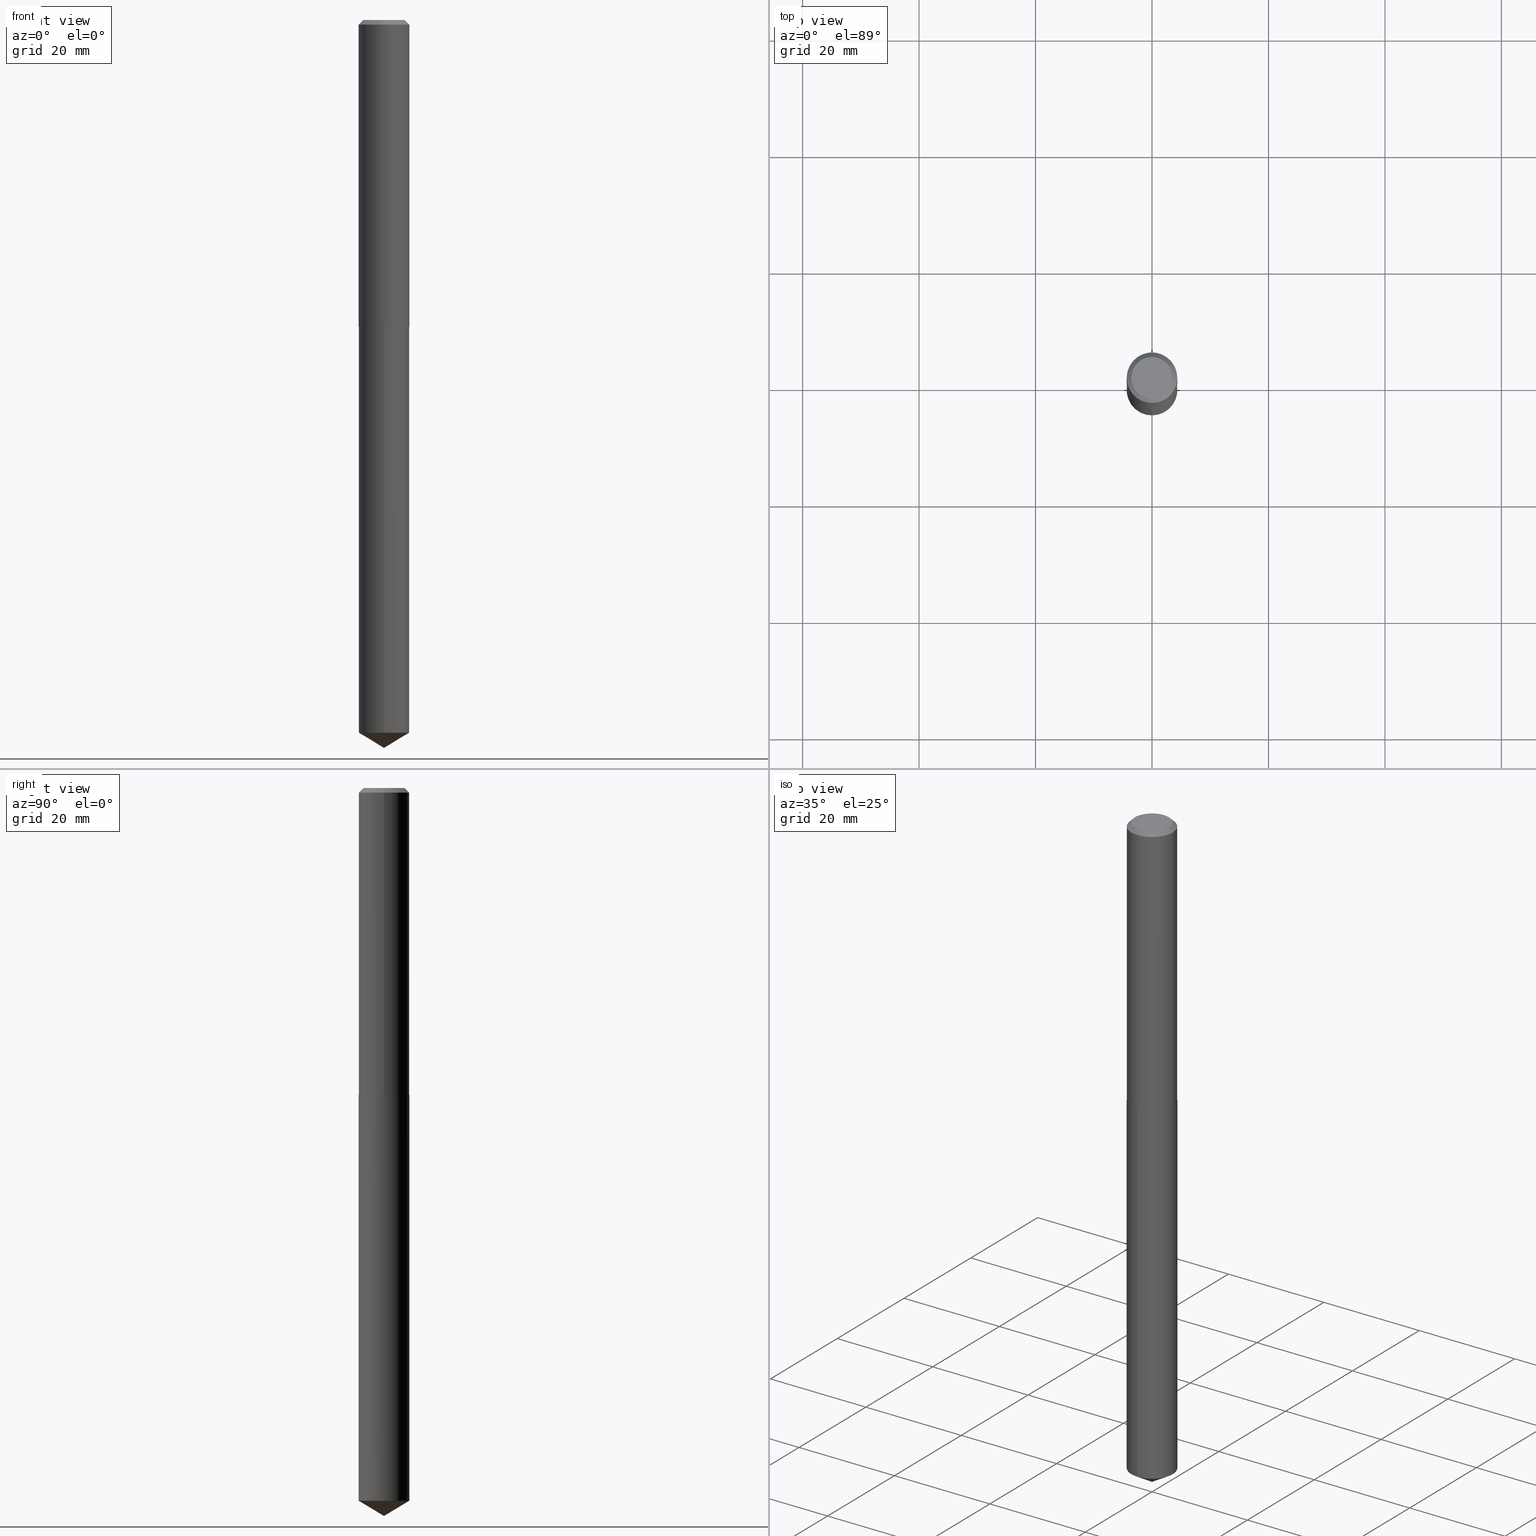
[diagram: canonical four-view strip — front | top / right | iso, engineering-drawing reading convention]
A machine part, canonical four-view strip (front | top / right | iso — engineering-drawing reading convention). The complete STEP part file that produces these views, byte-faithful:
ISO-10303-21;
HEADER;
FILE_DESCRIPTION (( 'STEP AP203' ),
    '1' );
FILE_NAME ('61113.STEP',
    '2024-04-23T04:14:12',
    ( '' ),
    ( '' ),
    'SwSTEP 2.0',
    'SolidWorks 2023',
    '' );
FILE_SCHEMA (( 'CONFIG_CONTROL_DESIGN' ));
ENDSEC;

DATA;
#1 = DIRECTION ( 'NONE',  ( -2.445468806185136597E-29, 3.491481338843145583E-15, 1.000000000000000000 ) ) ;
#2 = APPROVAL_ROLE ( '' ) ;
#3 = AXIS2_PLACEMENT_3D ( 'NONE', #342, #275, #130 ) ;
#4 = DIRECTION ( 'NONE',  ( 1.000000000000000000, -6.982962677686267499E-15, 4.876176775795935793E-29 ) ) ;
#5 = DIRECTION ( 'NONE',  ( 1.000000000000000000, -6.982962677686265133E-15, 0.000000000000000000 ) ) ;
#6 = FACE_OUTER_BOUND ( 'NONE', #140, .T. ) ;
#7 = CC_DESIGN_DATE_AND_TIME_ASSIGNMENT ( #318, #137, ( #86 ) ) ;
#8 = CARTESIAN_POINT ( 'NONE',  ( -8.424400560687328925E-28, 1.202764206450390735E-13, 34.44877874015747921 ) ) ;
#9 = ORGANIZATION ( 'UNSPECIFIED', 'UNSPECIFIED', '' ) ;
#10 = PLANE ( 'NONE',  #287 ) ;
#11 = ORIENTED_EDGE ( 'NONE', *, *, #61, .T. ) ;
#12 = DIRECTION ( 'NONE',  ( -6.982962677686265922E-15, -1.000000000000000000, 3.190479408658993096E-15 ) ) ;
#13 = ORIENTED_EDGE ( 'NONE', *, *, #263, .F. ) ;
#14 = AXIS2_PLACEMENT_3D ( 'NONE', #139, #203, #78 ) ;
#15 = DIRECTION ( 'NONE',  ( -2.445468806185136877E-29, 3.491481338843145188E-15, 1.000000000000000000 ) ) ;
#16 = ORIENTED_EDGE ( 'NONE', *, *, #172, .T. ) ;
#17 = EDGE_CURVE ( 'NONE', #262, #80, #88, .T. ) ;
#18 = CARTESIAN_POINT ( 'NONE',  ( 0.000000000000000000, 0.000000000000000000, 0.000000000000000000 ) ) ;
#19 = ORIENTED_EDGE ( 'NONE', *, *, #17, .T. ) ;
#20 = APPROVAL ( #209, 'UNSPECIFIED' ) ;
#21 = ORIENTED_EDGE ( 'NONE', *, *, #50, .F. ) ;
#22 = CIRCLE ( 'NONE', #3, 0.1707500000000004847 ) ;
#23 = DIRECTION ( 'NONE',  ( -6.982962677686265922E-15, -1.000000000000000000, 3.190479408658993096E-15 ) ) ;
#24 = DIRECTION ( 'NONE',  ( -1.000000000000000000, 6.982962677686266711E-15, 0.000000000000000000 ) ) ;
#25 = APPROVAL_ROLE ( '' ) ;
#26 = ORIENTED_EDGE ( 'NONE', *, *, #258, .T. ) ;
#27 = COORDINATED_UNIVERSAL_TIME_OFFSET ( 5, 0, .BEHIND. ) ;
#28 = CIRCLE ( 'NONE', #188, 0.1400000000000000133 ) ;
#29 = LOCAL_TIME ( 0, 14, 11.00000000000000000, #182 ) ;
#30 = DIRECTION ( 'NONE',  ( -2.445468806185136597E-29, 3.491481338843145583E-15, 1.000000000000000000 ) ) ;
#31 = EDGE_CURVE ( 'NONE', #225, #108, #296, .T. ) ;
#32 = CYLINDRICAL_SURFACE ( 'NONE', #193, 0.1712500000000000133 ) ;
#33 = CC_DESIGN_PERSON_AND_ORGANIZATION_ASSIGNMENT ( #168, #147, ( #86 ) ) ;
#34 = CARTESIAN_POINT ( 'NONE',  ( 1.203496596653277311E-28, -1.718251291870171588E-14, -4.921299999999999564 ) ) ;
#35 = CLOSED_SHELL ( 'NONE', ( #279, #370, #309, #314, #196, #253, #116, #343 ) ) ;
#36 = AXIS2_PLACEMENT_3D ( 'NONE', #70, #42, #102 ) ;
#37 = DIRECTION ( 'NONE',  ( 1.000000000000000000, -6.982962677686265922E-15, 4.876176775795935793E-29 ) ) ;
#38 = ADVANCED_FACE ( 'NONE', ( #303 ), #32, .T. ) ;
#39 = DIRECTION ( 'NONE',  ( 1.000000000000000000, -6.982962677686266711E-15, 0.000000000000000000 ) ) ;
#40 = CC_DESIGN_PERSON_AND_ORGANIZATION_ASSIGNMENT ( #93, #152, ( #250 ) ) ;
#41 = LINE ( 'NONE', #340, #143 ) ;
#42 = DIRECTION ( 'NONE',  ( -2.445468806185136597E-29, 3.491481338843145583E-15, 1.000000000000000000 ) ) ;
#43 = AXIS2_PLACEMENT_3D ( 'NONE', #18, #230, #266 ) ;
#44 = PERSON_AND_ORGANIZATION ( #347, #9 ) ;
#45 = ORIENTED_EDGE ( 'NONE', *, *, #326, .F. ) ;
#46 = CARTESIAN_POINT ( 'NONE',  ( 0.1712500000000000133, -1.304941150392622433E-15, -0.03125000000000019429 ) ) ;
#47 = VERTEX_POINT ( 'NONE', #208 ) ;
#48 = APPROVAL_DATE_TIME ( #166, #337 ) ;
#49 = EDGE_LOOP ( 'NONE', ( #376, #111, #148, #282 ) ) ;
#50 = EDGE_CURVE ( 'NONE', #356, #201, #360, .T. ) ;
#51 = APPLICATION_PROTOCOL_DEFINITION ( 'international standard', 'config_control_design', 1994, #293 ) ;
#52 = ORIENTED_EDGE ( 'NONE', *, *, #185, .T. ) ;
#53 = ORIENTED_EDGE ( 'NONE', *, *, #326, .T. ) ;
#54 = DIRECTION ( 'NONE',  ( 1.000000000000000000, -6.982962677686265922E-15, 4.876177996939016778E-29 ) ) ;
#55 = CIRCLE ( 'NONE', #114, 0.1712500000000000133 ) ;
#56 = CC_DESIGN_APPROVAL ( #304, ( #250 ) ) ;
#57 = CARTESIAN_POINT ( 'NONE',  ( 5.071413210266735491E-29, -7.240634000492913769E-15, -2.073799999999999422 ) ) ;
#58 = DIRECTION ( 'NONE',  ( -6.982962677686265922E-15, -1.000000000000000000, 3.190479408658993096E-15 ) ) ;
#59 = COORDINATED_UNIVERSAL_TIME_OFFSET ( 5, 0, .BEHIND. ) ;
#60 = DIRECTION ( 'NONE',  ( -2.445468806185136597E-29, 3.491481338843145583E-15, 1.000000000000000000 ) ) ;
#61 = EDGE_CURVE ( 'NONE', #381, #201, #67, .T. ) ;
#62 = VECTOR ( 'NONE', #332, 39.37007874015748143 ) ;
#63 = VECTOR ( 'NONE', #126, 39.37007874015748854 ) ;
#64 = DIRECTION ( 'NONE',  ( 2.445468806185136597E-29, -3.491481338843145583E-15, -1.000000000000000000 ) ) ;
#65 = CARTESIAN_POINT ( 'NONE',  ( 5.070190475863642689E-29, -7.238888259823493055E-15, -2.073299999999999699 ) ) ;
#66 = LINE ( 'NONE', #34, #244 ) ;
#67 = CIRCLE ( 'NONE', #385, 0.1712500000000002354 ) ;
#68 = AXIS2_PLACEMENT_3D ( 'NONE', #122, #362, #91 ) ;
#69 = CARTESIAN_POINT ( 'NONE',  ( 0.1712500000000002354, -8.434720618377267964E-15, -2.073299999999999699 ) ) ;
#70 = CARTESIAN_POINT ( 'NONE',  ( 7.642090019328598283E-31, -1.091087918388489651E-16, -0.03125000000000019429 ) ) ;
#71 = LINE ( 'NONE', #163, #63 ) ;
#72 = EDGE_CURVE ( 'NONE', #201, #381, #113, .T. ) ;
#73 = CARTESIAN_POINT ( 'NONE',  ( 0.1712500000000002354, -8.434720618377267964E-15, -2.073299999999999699 ) ) ;
#74 = CONICAL_SURFACE ( 'NONE', #81, 0.1712500000000002354, 0.7853981633970044118 ) ;
#75 = CARTESIAN_POINT ( 'NONE',  ( -2.919964657261599251E-48, 4.168935659749557485E-34, 1.194030629168671885E-19 ) ) ;
#76 = ORIENTED_EDGE ( 'NONE', *, *, #263, .T. ) ;
#77 = EDGE_LOOP ( 'NONE', ( #353, #110, #136, #379 ) ) ;
#78 = DIRECTION ( 'NONE',  ( 1.000000000000000000, -6.982962677686267499E-15, 4.876176775795935793E-29 ) ) ;
#79 = CC_DESIGN_PERSON_AND_ORGANIZATION_ASSIGNMENT ( #179, #301, ( #109 ) ) ;
#80 = VERTEX_POINT ( 'NONE', #366 ) ;
#81 = AXIS2_PLACEMENT_3D ( 'NONE', #65, #369, #307 ) ;
#82 = APPROVAL_PERSON_ORGANIZATION ( #44, #304, #2 ) ;
#83 = CALENDAR_DATE ( 2024, 23, 4 ) ;
#84 = ORIENTED_EDGE ( 'NONE', *, *, #367, .T. ) ;
#85 = EDGE_LOOP ( 'NONE', ( #171, #76, #204 ) ) ;
#86 = PRODUCT_DEFINITION ( 'UNKNOWN', '', #250, #290 ) ;
#87 = EDGE_LOOP ( 'NONE', ( #90, #352, #174, #205 ) ) ;
#88 = CIRCLE ( 'NONE', #256, 0.1712500000000000133 ) ;
#89 = AXIS2_PLACEMENT_3D ( 'NONE', #308, #158, #4 ) ;
#90 = ORIENTED_EDGE ( 'NONE', *, *, #285, .F. ) ;
#91 = DIRECTION ( 'NONE',  ( 1.000000000000000000, -6.982962677686269077E-15, 0.000000000000000000 ) ) ;
#92 = EDGE_CURVE ( 'NONE', #225, #261, #211, .T. ) ;
#93 = PERSON_AND_ORGANIZATION ( #347, #9 ) ;
#94 = DIRECTION ( 'NONE',  ( -2.445485009494565078E-29, 3.491458134781809041E-15, 1.000000000000000000 ) ) ;
#95 = LOCAL_TIME ( 0, 14, 11.00000000000000000, #351 ) ;
#96 = CARTESIAN_POINT ( 'NONE',  ( -5.839929314523198503E-48, 8.337871319499114970E-34, 2.388061258337343770E-19 ) ) ;
#97 = CARTESIAN_POINT ( 'NONE',  ( -0.1400000000000000133, 1.032169170795500864E-15, 2.388061258267069475E-19 ) ) ;
#98 = CALENDAR_DATE ( 2024, 23, 4 ) ;
#99 = ADVANCED_FACE ( 'NONE', ( #295 ), #183, .T. ) ;
#100 = LINE ( 'NONE', #69, #107 ) ;
#101 = CIRCLE ( 'NONE', #377, 0.1712500000000000133 ) ;
#102 = DIRECTION ( 'NONE',  ( 1.000000000000000000, -6.982962677686266711E-15, 0.000000000000000000 ) ) ;
#103 = DIRECTION ( 'NONE',  ( 2.445485009494564517E-29, -3.491458134781809435E-15, -1.000000000000000000 ) ) ;
#104 = EDGE_CURVE ( 'NONE', #381, #363, #233, .T. ) ;
#105 = COORDINATED_UNIVERSAL_TIME_OFFSET ( 5, 0, .BEHIND. ) ;
#106 = PERSON_AND_ORGANIZATION_ROLE ( 'design_owner' ) ;
#107 = VECTOR ( 'NONE', #189, 39.37007874015748143 ) ;
#108 = VERTEX_POINT ( 'NONE', #334 ) ;
#109 = SECURITY_CLASSIFICATION ( '', '', #213 ) ;
#110 = ORIENTED_EDGE ( 'NONE', *, *, #129, .T. ) ;
#111 = ORIENTED_EDGE ( 'NONE', *, *, #72, .T. ) ;
#112 = APPROVAL_STATUS ( 'not_yet_approved' ) ;
#113 = CIRCLE ( 'NONE', #161, 0.1712500000000002354 ) ;
#114 = AXIS2_PLACEMENT_3D ( 'NONE', #274, #192, #276 ) ;
#115 = ORIENTED_EDGE ( 'NONE', *, *, #240, .F. ) ;
#116 = ADVANCED_FACE ( 'NONE', ( #330 ), #229, .T. ) ;
#117 = CARTESIAN_POINT ( 'NONE',  ( 5.071413210266735491E-29, -7.240634000492913769E-15, -2.073799999999999422 ) ) ;
#118 = CARTESIAN_POINT ( 'NONE',  ( 1.216804434989222150E-15, 0.1712499999999927691, -2.073800000000000310 ) ) ;
#119 = VECTOR ( 'NONE', #176, 39.37007874015748143 ) ;
#120 = CALENDAR_DATE ( 2024, 23, 4 ) ;
#121 = DIRECTION ( 'NONE',  ( -2.445485009494564797E-29, 3.491458134781809435E-15, 1.000000000000000000 ) ) ;
#122 = CARTESIAN_POINT ( 'NONE',  ( 5.071413210266735491E-29, -7.240634000492915347E-15, -2.073799999999999866 ) ) ;
#123 = DIRECTION ( 'NONE',  ( 1.000000000000000000, -6.982962677686265133E-15, 0.000000000000000000 ) ) ;
#124 = CALENDAR_DATE ( 2024, 23, 4 ) ;
#125 = CYLINDRICAL_SURFACE ( 'NONE', #89, 0.1712500000000001243 ) ;
#126 = DIRECTION ( 'NONE',  ( -5.985567269335971256E-15, -0.8571673007021145541, 0.5150380749100501587 ) ) ;
#127 = FACE_OUTER_BOUND ( 'NONE', #200, .T. ) ;
#128 = AXIS2_PLACEMENT_3D ( 'NONE', #259, #224, #12 ) ;
#129 = EDGE_CURVE ( 'NONE', #262, #292, #146, .T. ) ;
#130 = DIRECTION ( 'NONE',  ( 1.000000000000000000, -6.982962677686269077E-15, 0.000000000000000000 ) ) ;
#131 = DIRECTION ( 'NONE',  ( -1.000000000000000000, 6.982962677686266711E-15, 0.000000000000000000 ) ) ;
#132 = CYLINDRICAL_SURFACE ( 'NONE', #14, 0.1712500000000001243 ) ;
#133 = ORIENTED_EDGE ( 'NONE', *, *, #258, .F. ) ;
#134 =( CONVERSION_BASED_UNIT ( 'INCH', #223 ) LENGTH_UNIT ( ) NAMED_UNIT ( #241 ) );
#135 = CIRCLE ( 'NONE', #128, 0.1712500000000000133 ) ;
#136 = ORIENTED_EDGE ( 'NONE', *, *, #367, .F. ) ;
#137 = DATE_TIME_ROLE ( 'creation_date' ) ;
#138 = ORIENTED_EDGE ( 'NONE', *, *, #104, .F. ) ;
#139 = CARTESIAN_POINT ( 'NONE',  ( 0.000000000000000000, 0.000000000000000000, 0.000000000000000000 ) ) ;
#140 = EDGE_LOOP ( 'NONE', ( #133, #198 ) ) ;
#141 = EDGE_CURVE ( 'NONE', #80, #142, #207, .T. ) ;
#142 = VERTEX_POINT ( 'NONE', #305 ) ;
#143 = VECTOR ( 'NONE', #154, 39.37007874015748143 ) ;
#144 = PRODUCT_RELATED_PRODUCT_CATEGORY ( 'detail', '', ( #265 ) ) ;
#145 = ORIENTED_EDGE ( 'NONE', *, *, #72, .F. ) ;
#146 = LINE ( 'NONE', #118, #219 ) ;
#147 = PERSON_AND_ORGANIZATION_ROLE ( 'creator' ) ;
#148 = ORIENTED_EDGE ( 'NONE', *, *, #104, .T. ) ;
#149 = CONICAL_SURFACE ( 'NONE', #249, 65.52281426576962531, 1.029744258676662527 ) ;
#150 = APPROVAL_STATUS ( 'not_yet_approved' ) ;
#151 = DIRECTION ( 'NONE',  ( -0.7071067811862336017, 7.493145998869219778E-15, 0.7071067811868614328 ) ) ;
#152 = PERSON_AND_ORGANIZATION_ROLE ( 'design_supplier' ) ;
#153 = ORIENTED_EDGE ( 'NONE', *, *, #285, .T. ) ;
#154 = DIRECTION ( 'NONE',  ( 0.7071067811865454633, -7.319954787623248157E-15, -0.7071067811865495711 ) ) ;
#155 = CC_DESIGN_PERSON_AND_ORGANIZATION_ASSIGNMENT ( #226, #106, ( #265 ) ) ;
#156 = CIRCLE ( 'NONE', #68, 0.1707500000000004847 ) ;
#157 = CARTESIAN_POINT ( 'NONE',  ( 5.071413210266735491E-29, -7.240634000492913769E-15, -2.073799999999999422 ) ) ;
#158 = DIRECTION ( 'NONE',  ( -2.445468806185136597E-29, 3.491481338843145583E-15, 1.000000000000000000 ) ) ;
#159 = ADVANCED_FACE ( 'NONE', ( #299 ), #382, .T. ) ;
#160 = CARTESIAN_POINT ( 'NONE',  ( 1.216804434989290189E-15, 0.1712499999999927691, -2.073800000000000310 ) ) ;
#161 = AXIS2_PLACEMENT_3D ( 'NONE', #327, #60, #123 ) ;
#162 = CONICAL_SURFACE ( 'NONE', #194, 0.1712500000000000133, 0.7853981633974453924 ) ;
#163 = CARTESIAN_POINT ( 'NONE',  ( 1.203489817237941676E-28, -1.718260915986651479E-14, -4.921299999999999564 ) ) ;
#164 = DIRECTION ( 'NONE',  ( -6.982962677686265922E-15, -1.000000000000000000, 3.190479408658993096E-15 ) ) ;
#165 = VERTEX_POINT ( 'NONE', #238 ) ;
#166 = DATE_AND_TIME ( #199, #95 ) ;
#167 = ORIENTED_EDGE ( 'NONE', *, *, #240, .T. ) ;
#168 = PERSON_AND_ORGANIZATION ( #347, #9 ) ;
#169 = APPROVAL_PERSON_ORGANIZATION ( #319, #337, #25 ) ;
#170 = ORIENTED_EDGE ( 'NONE', *, *, #129, .F. ) ;
#171 = ORIENTED_EDGE ( 'NONE', *, *, #300, .F. ) ;
#172 = EDGE_CURVE ( 'NONE', #356, #165, #156, .T. ) ;
#173 = EDGE_LOOP ( 'NONE', ( #13, #320, #294 ) ) ;
#174 = ORIENTED_EDGE ( 'NONE', *, *, #31, .T. ) ;
#175 = LOCAL_TIME ( 0, 14, 11.00000000000000000, #27 ) ;
#176 = DIRECTION ( 'NONE',  ( -2.445468806185136877E-29, 3.491481338843145188E-15, 1.000000000000000000 ) ) ;
#177 =( NAMED_UNIT ( * ) PLANE_ANGLE_UNIT ( ) SI_UNIT ( $, .RADIAN. ) );
#178 = CARTESIAN_POINT ( 'NONE',  ( -1.195832358553722450E-15, -0.1712500000000072575, -2.073799999999998978 ) ) ;
#179 = PERSON_AND_ORGANIZATION ( #347, #9 ) ;
#180 = ORIENTED_EDGE ( 'NONE', *, *, #92, .T. ) ;
#181 = AXIS2_PLACEMENT_3D ( 'NONE', #268, #389, #390 ) ;
#182 = COORDINATED_UNIVERSAL_TIME_OFFSET ( 5, 0, .BEHIND. ) ;
#183 = CYLINDRICAL_SURFACE ( 'NONE', #341, 0.1712500000000000133 ) ;
#184 = APPROVAL_ROLE ( '' ) ;
#185 = EDGE_CURVE ( 'NONE', #363, #108, #101, .T. ) ;
#186 = FACE_OUTER_BOUND ( 'NONE', #49, .T. ) ;
#187 = CARTESIAN_POINT ( 'NONE',  ( -0.1712500000000002354, -6.022083824834319025E-15, -2.073299999999999699 ) ) ;
#188 = AXIS2_PLACEMENT_3D ( 'NONE', #222, #315, #191 ) ;
#189 = DIRECTION ( 'NONE',  ( 0.7071067811862336017, -2.468850131078969088E-15, 0.7071067811868614328 ) ) ;
#190 = MANIFOLD_SOLID_BREP ( 'Body-Move/Copy2[1]', #371 ) ;
#191 = DIRECTION ( 'NONE',  ( 1.000000000000000000, -6.982962677686265922E-15, 4.876177996939016778E-29 ) ) ;
#192 = DIRECTION ( 'NONE',  ( -2.445485009494565078E-29, 3.491458134781809041E-15, 1.000000000000000000 ) ) ;
#193 = AXIS2_PLACEMENT_3D ( 'NONE', #117, #94, #23 ) ;
#194 = AXIS2_PLACEMENT_3D ( 'NONE', #218, #280, #131 ) ;
#195 = MANIFOLD_SOLID_BREP ( 'Body-Move/Copy2[2]', #35 ) ;
#196 = ADVANCED_FACE ( 'NONE', ( #312 ), #328, .T. ) ;
#197 = CARTESIAN_POINT ( 'NONE',  ( 1.178329777203005104E-28, -1.682329914131435626E-14, -4.818402618991531661 ) ) ;
#198 = ORIENTED_EDGE ( 'NONE', *, *, #172, .F. ) ;
#199 = CALENDAR_DATE ( 2024, 23, 4 ) ;
#200 = EDGE_LOOP ( 'NONE', ( #180, #167 ) ) ;
#201 = VERTEX_POINT ( 'NONE', #187 ) ;
#202 = ADVANCED_FACE ( 'NONE', ( #338 ), #149, .T. ) ;
#203 = DIRECTION ( 'NONE',  ( -2.445468806185136597E-29, 3.491481338843145583E-15, 1.000000000000000000 ) ) ;
#204 = ORIENTED_EDGE ( 'NONE', *, *, #17, .F. ) ;
#205 = ORIENTED_EDGE ( 'NONE', *, *, #217, .T. ) ;
#206 = DIRECTION ( 'NONE',  ( -2.445485009494565078E-29, 3.491458134781809041E-15, 1.000000000000000000 ) ) ;
#207 = LINE ( 'NONE', #178, #348 ) ;
#208 = CARTESIAN_POINT ( 'NONE',  ( 1.203496537722560274E-28, -1.718251291870171588E-14, -4.921299999999999564 ) ) ;
#209 = APPROVAL_STATUS ( 'not_yet_approved' ) ;
#210 = DIRECTION ( 'NONE',  ( -2.445485009494565078E-29, 3.491458134781809041E-15, 1.000000000000000000 ) ) ;
#211 = CIRCLE ( 'NONE', #286, 0.1400000000000000133 ) ;
#212 = EDGE_CURVE ( 'NONE', #292, #142, #55, .T. ) ;
#213 = SECURITY_CLASSIFICATION_LEVEL ( 'unclassified' ) ;
#214 = DIRECTION ( 'NONE',  ( -2.445485009494565078E-29, 3.491458134781809041E-15, 1.000000000000000000 ) ) ;
#215 = DIRECTION ( 'NONE',  ( -2.438088387897960049E-29, 3.491481338843145188E-15, 1.000000000000000000 ) ) ;
#216 = DATE_AND_TIME ( #98, #29 ) ;
#217 = EDGE_CURVE ( 'NONE', #108, #363, #373, .T. ) ;
#218 = CARTESIAN_POINT ( 'NONE',  ( 7.642090019328598283E-31, -1.091087918388489651E-16, -0.03125000000000019429 ) ) ;
#219 = VECTOR ( 'NONE', #270, 39.37007874015748143 ) ;
#220 = APPROVAL_PERSON_ORGANIZATION ( #361, #20, #184 ) ;
#221 = DIRECTION ( 'NONE',  ( -2.445468806185136597E-29, 3.491481338843145583E-15, 1.000000000000000000 ) ) ;
#222 = CARTESIAN_POINT ( 'NONE',  ( -5.839929314523198503E-48, 8.337871319499114970E-34, 2.388061258337343770E-19 ) ) ;
#223 = LENGTH_MEASURE_WITH_UNIT ( LENGTH_MEASURE( 0.02539999999999999897 ), #283 );
#224 = DIRECTION ( 'NONE',  ( -2.445485009494565078E-29, 3.491458134781809041E-15, 1.000000000000000000 ) ) ;
#225 = VERTEX_POINT ( 'NONE', #97 ) ;
#226 = PERSON_AND_ORGANIZATION ( #347, #9 ) ;
#227 = EDGE_LOOP ( 'NONE', ( #26, #260, #255, #45 ) ) ;
#228 = EDGE_LOOP ( 'NONE', ( #21, #16, #53, #145 ) ) ;
#229 = CONICAL_SURFACE ( 'NONE', #333, 0.1712500000000000133, 0.7853981633974453924 ) ;
#230 = DIRECTION ( 'NONE',  ( 0.000000000000000000, 0.000000000000000000, 1.000000000000000000 ) ) ;
#231 = EDGE_LOOP ( 'NONE', ( #115, #153, #52, #350 ) ) ;
#232 = EDGE_LOOP ( 'NONE', ( #11, #322, #323, #138 ) ) ;
#233 = LINE ( 'NONE', #358, #119 ) ;
#234 = ADVANCED_FACE ( 'NONE', ( #374 ), #10, .F. ) ;
#235 = CARTESIAN_POINT ( 'NONE',  ( 7.642090019328598283E-31, -1.091087918388489651E-16, -0.03125000000000019429 ) ) ;
#236 =( GEOMETRIC_REPRESENTATION_CONTEXT ( 3 ) GLOBAL_UNCERTAINTY_ASSIGNED_CONTEXT ( ( #297 ) ) GLOBAL_UNIT_ASSIGNED_CONTEXT ( ( #134, #177, #298 ) ) REPRESENTATION_CONTEXT ( 'NONE', 'WORKASPACE' ) );
#237 = SHAPE_DEFINITION_REPRESENTATION ( #357, #364 ) ;
#238 = CARTESIAN_POINT ( 'NONE',  ( 0.1707500000000004847, -8.432974877707848827E-15, -2.073799999999999866 ) ) ;
#239 = CARTESIAN_POINT ( 'NONE',  ( 7.642090019328598283E-31, -1.091087918388489651E-16, -0.03125000000000019429 ) ) ;
#240 = EDGE_CURVE ( 'NONE', #261, #225, #28, .T. ) ;
#241 = DIMENSIONAL_EXPONENTS ( 1.000000000000000000, 0.000000000000000000, 0.000000000000000000, 0.000000000000000000, 0.000000000000000000, 0.000000000000000000, 0.000000000000000000 ) ;
#242 = DIRECTION ( 'NONE',  ( -6.982962677686265922E-15, -1.000000000000000000, 3.190479408658993096E-15 ) ) ;
#243 = APPLICATION_CONTEXT ( 'configuration controlled 3d designs of mechanical parts and assemblies' ) ;
#244 = VECTOR ( 'NONE', #252, 39.37007874015748143 ) ;
#245 = DATE_TIME_ROLE ( 'classification_date' ) ;
#246 = CARTESIAN_POINT ( 'NONE',  ( 1.216804434989289598E-15, 0.1712499999999831934, -4.818402618991532549 ) ) ;
#247 = FACE_OUTER_BOUND ( 'NONE', #231, .T. ) ;
#248 = PLANE ( 'NONE',  #311 ) ;
#249 = AXIS2_PLACEMENT_3D ( 'NONE', #8, #214, #372 ) ;
#250 = PRODUCT_DEFINITION_FORMATION_WITH_SPECIFIED_SOURCE ( 'ANY', '', #265, .NOT_KNOWN. ) ;
#251 = DIRECTION ( 'NONE',  ( 6.982962677686265922E-15, 1.000000000000000000, -3.491458134781809435E-15 ) ) ;
#252 = DIRECTION ( 'NONE',  ( 6.090539988449809201E-15, 0.8571673007021183288, 0.5150380749100442745 ) ) ;
#253 = ADVANCED_FACE ( 'NONE', ( #186 ), #125, .T. ) ;
#254 = LINE ( 'NONE', #291, #387 ) ;
#255 = ORIENTED_EDGE ( 'NONE', *, *, #61, .F. ) ;
#256 = AXIS2_PLACEMENT_3D ( 'NONE', #264, #206, #242 ) ;
#257 = ORIENTED_EDGE ( 'NONE', *, *, #212, .F. ) ;
#258 = EDGE_CURVE ( 'NONE', #165, #356, #22, .T. ) ;
#259 = CARTESIAN_POINT ( 'NONE',  ( 5.071413210266735491E-29, -7.240634000492913769E-15, -2.073799999999999422 ) ) ;
#260 = ORIENTED_EDGE ( 'NONE', *, *, #50, .T. ) ;
#261 = VERTEX_POINT ( 'NONE', #313 ) ;
#262 = VERTEX_POINT ( 'NONE', #246 ) ;
#263 = EDGE_CURVE ( 'NONE', #47, #80, #71, .T. ) ;
#264 = CARTESIAN_POINT ( 'NONE',  ( 1.178329777203005104E-28, -1.682329914131435626E-14, -4.818402618991531661 ) ) ;
#265 = PRODUCT ( '61113', '61113', '', ( #349 ) ) ;
#266 = DIRECTION ( 'NONE',  ( 1.000000000000000000, 0.000000000000000000, 0.000000000000000000 ) ) ;
#267 = AXIS2_PLACEMENT_3D ( 'NONE', #344, #375, #5 ) ;
#268 = CARTESIAN_POINT ( 'NONE',  ( -8.424400560687328925E-28, 1.202764206450390735E-13, 34.44877874015747921 ) ) ;
#269 = DATE_AND_TIME ( #124, #175 ) ;
#270 = DIRECTION ( 'NONE',  ( -2.445485009494564797E-29, 3.491458134781809435E-15, 1.000000000000000000 ) ) ;
#271 = CARTESIAN_POINT ( 'NONE',  ( -0.1712500000000002354, -6.022083824834319025E-15, -2.073299999999999699 ) ) ;
#272 = PLANE ( 'NONE',  #273 ) ;
#273 = AXIS2_PLACEMENT_3D ( 'NONE', #368, #215, #37 ) ;
#274 = CARTESIAN_POINT ( 'NONE',  ( 5.071413210266735491E-29, -7.240634000492913769E-15, -2.073799999999999422 ) ) ;
#275 = DIRECTION ( 'NONE',  ( -2.445468806185136597E-29, 3.491481338843145583E-15, 1.000000000000000000 ) ) ;
#276 = DIRECTION ( 'NONE',  ( -6.982962677686265922E-15, -1.000000000000000000, 3.190479408658993096E-15 ) ) ;
#277 = CIRCLE ( 'NONE', #302, 0.1712500000000000133 ) ;
#278 = CC_DESIGN_SECURITY_CLASSIFICATION ( #109, ( #250 ) ) ;
#279 = ADVANCED_FACE ( 'NONE', ( #247 ), #162, .T. ) ;
#280 = DIRECTION ( 'NONE',  ( 2.445468806185136597E-29, -3.491481338843145583E-15, -1.000000000000000000 ) ) ;
#281 = DIRECTION ( 'NONE',  ( -1.000000000000000000, 6.982962677686265922E-15, -4.876176775795935793E-29 ) ) ;
#282 = ORIENTED_EDGE ( 'NONE', *, *, #217, .F. ) ;
#283 =( LENGTH_UNIT ( ) NAMED_UNIT ( * ) SI_UNIT ( $, .METRE. ) );
#284 = ORIENTED_EDGE ( 'NONE', *, *, #141, .T. ) ;
#285 = EDGE_CURVE ( 'NONE', #261, #363, #41, .T. ) ;
#286 = AXIS2_PLACEMENT_3D ( 'NONE', #96, #30, #54 ) ;
#287 = AXIS2_PLACEMENT_3D ( 'NONE', #157, #103, #251 ) ;
#288 = DIRECTION ( 'NONE',  ( -2.445485009494565078E-29, 3.491458134781809041E-15, 1.000000000000000000 ) ) ;
#289 = ORIENTED_EDGE ( 'NONE', *, *, #212, .T. ) ;
#290 = DESIGN_CONTEXT ( 'detailed design', #243, 'design' ) ;
#291 = CARTESIAN_POINT ( 'NONE',  ( -0.1712500000000001243, 1.216804434989172452E-15, -8.423676342061532268E-30 ) ) ;
#292 = VERTEX_POINT ( 'NONE', #160 ) ;
#293 = APPLICATION_CONTEXT ( 'configuration controlled 3d designs of mechanical parts and assemblies' ) ;
#294 = ORIENTED_EDGE ( 'NONE', *, *, #359, .F. ) ;
#295 = FACE_OUTER_BOUND ( 'NONE', #325, .T. ) ;
#296 = LINE ( 'NONE', #383, #62 ) ;
#297 = UNCERTAINTY_MEASURE_WITH_UNIT (LENGTH_MEASURE( 1.000000000000000082E-05 ), #134, 'distance_accuracy_value', 'NONE');
#298 =( NAMED_UNIT ( * ) SI_UNIT ( $, .STERADIAN. ) SOLID_ANGLE_UNIT ( ) );
#299 = FACE_OUTER_BOUND ( 'NONE', #173, .T. ) ;
#300 = EDGE_CURVE ( 'NONE', #47, #262, #66, .T. ) ;
#301 = PERSON_AND_ORGANIZATION_ROLE ( 'classification_officer' ) ;
#302 = AXIS2_PLACEMENT_3D ( 'NONE', #197, #288, #164 ) ;
#303 = FACE_OUTER_BOUND ( 'NONE', #77, .T. ) ;
#304 = APPROVAL ( #150, 'UNSPECIFIED' ) ;
#305 = CARTESIAN_POINT ( 'NONE',  ( -1.195832358553722450E-15, -0.1712500000000072575, -2.073799999999998978 ) ) ;
#306 = APPROVAL_DATE_TIME ( #339, #20 ) ;
#307 = DIRECTION ( 'NONE',  ( 1.000000000000000000, -6.982962677686265133E-15, 0.000000000000000000 ) ) ;
#308 = CARTESIAN_POINT ( 'NONE',  ( 0.000000000000000000, 0.000000000000000000, 0.000000000000000000 ) ) ;
#309 = ADVANCED_FACE ( 'NONE', ( #336 ), #74, .T. ) ;
#310 = VECTOR ( 'NONE', #151, 39.37007874015748143 ) ;
#311 = AXIS2_PLACEMENT_3D ( 'NONE', #75, #321, #281 ) ;
#312 = FACE_OUTER_BOUND ( 'NONE', #228, .T. ) ;
#313 = CARTESIAN_POINT ( 'NONE',  ( 0.1400000000000000133, -1.122219396822619173E-15, 2.388061258410762627E-19 ) ) ;
#314 = ADVANCED_FACE ( 'NONE', ( #6 ), #272, .F. ) ;
#315 = DIRECTION ( 'NONE',  ( -2.445468806185136597E-29, 3.491481338843145583E-15, 1.000000000000000000 ) ) ;
#316 = CC_DESIGN_APPROVAL ( #337, ( #86 ) ) ;
#317 = CC_DESIGN_PERSON_AND_ORGANIZATION_ASSIGNMENT ( #331, #335, ( #250 ) ) ;
#318 = DATE_AND_TIME ( #83, #365 ) ;
#319 = PERSON_AND_ORGANIZATION ( #347, #9 ) ;
#320 = ORIENTED_EDGE ( 'NONE', *, *, #300, .T. ) ;
#321 = DIRECTION ( 'NONE',  ( 2.438088387897960049E-29, -3.491481338843145188E-15, -1.000000000000000000 ) ) ;
#322 = ORIENTED_EDGE ( 'NONE', *, *, #378, .T. ) ;
#323 = ORIENTED_EDGE ( 'NONE', *, *, #185, .F. ) ;
#324 = CARTESIAN_POINT ( 'NONE',  ( -0.1707500000000004847, -6.024733052008430226E-15, -2.073799999999999866 ) ) ;
#325 = EDGE_LOOP ( 'NONE', ( #170, #19, #284, #257 ) ) ;
#326 = EDGE_CURVE ( 'NONE', #165, #381, #100, .T. ) ;
#327 = CARTESIAN_POINT ( 'NONE',  ( 5.070190475863642689E-29, -7.238888259823493055E-15, -2.073299999999999699 ) ) ;
#328 = CONICAL_SURFACE ( 'NONE', #267, 0.1712500000000002354, 0.7853981633970044118 ) ;
#329 = CARTESIAN_POINT ( 'NONE',  ( 5.070190475863642689E-29, -7.238888259823493055E-15, -2.073299999999999699 ) ) ;
#330 = FACE_OUTER_BOUND ( 'NONE', #87, .T. ) ;
#331 = PERSON_AND_ORGANIZATION ( #347, #9 ) ;
#332 = DIRECTION ( 'NONE',  ( -0.7071067811865454633, 2.468850131082235367E-15, -0.7071067811865495711 ) ) ;
#333 = AXIS2_PLACEMENT_3D ( 'NONE', #235, #64, #24 ) ;
#334 = CARTESIAN_POINT ( 'NONE',  ( -0.1712500000000000133, -2.457194090841997837E-15, -0.03125000000000019429 ) ) ;
#335 = PERSON_AND_ORGANIZATION_ROLE ( 'creator' ) ;
#336 = FACE_OUTER_BOUND ( 'NONE', #227, .T. ) ;
#337 = APPROVAL ( #112, 'UNSPECIFIED' ) ;
#338 = FACE_OUTER_BOUND ( 'NONE', #85, .T. ) ;
#339 = DATE_AND_TIME ( #120, #388 ) ;
#340 = CARTESIAN_POINT ( 'NONE',  ( 0.1712500000000000133, -1.283969073957224102E-15, -0.03125000000000019429 ) ) ;
#341 = AXIS2_PLACEMENT_3D ( 'NONE', #57, #210, #58 ) ;
#342 = CARTESIAN_POINT ( 'NONE',  ( 5.071413210266735491E-29, -7.240634000492915347E-15, -2.073799999999999866 ) ) ;
#343 = ADVANCED_FACE ( 'NONE', ( #127 ), #248, .F. ) ;
#344 = CARTESIAN_POINT ( 'NONE',  ( 5.070190475863642689E-29, -7.238888259823493055E-15, -2.073299999999999699 ) ) ;
#345 = CC_DESIGN_DATE_AND_TIME_ASSIGNMENT ( #269, #245, ( #109 ) ) ;
#346 = FACE_OUTER_BOUND ( 'NONE', #232, .T. ) ;
#347 = PERSON ( 'UNSPECIFIED', 'UNSPECIFIED', 'UNSPECIFIED', ('UNSPECIFIED'), ('UNSPECIFIED'), ('UNSPECIFIED') ) ;
#348 = VECTOR ( 'NONE', #121, 39.37007874015748143 ) ;
#349 = MECHANICAL_CONTEXT ( 'NONE', #293, 'mechanical' ) ;
#350 = ORIENTED_EDGE ( 'NONE', *, *, #31, .F. ) ;
#351 = COORDINATED_UNIVERSAL_TIME_OFFSET ( 5, 0, .BEHIND. ) ;
#352 = ORIENTED_EDGE ( 'NONE', *, *, #92, .F. ) ;
#353 = ORIENTED_EDGE ( 'NONE', *, *, #359, .T. ) ;
#354 = CC_DESIGN_APPROVAL ( #20, ( #109 ) ) ;
#355 = EDGE_LOOP ( 'NONE', ( #84, #289 ) ) ;
#356 = VERTEX_POINT ( 'NONE', #324 ) ;
#357 = PRODUCT_DEFINITION_SHAPE ( 'NONE', 'NONE',  #86 ) ;
#358 = CARTESIAN_POINT ( 'NONE',  ( 0.1712500000000001243, -1.195832358553774121E-15, 8.350452728550546071E-30 ) ) ;
#359 = EDGE_CURVE ( 'NONE', #80, #262, #277, .T. ) ;
#360 = LINE ( 'NONE', #271, #310 ) ;
#361 = PERSON_AND_ORGANIZATION ( #347, #9 ) ;
#362 = DIRECTION ( 'NONE',  ( -2.445468806185136597E-29, 3.491481338843145583E-15, 1.000000000000000000 ) ) ;
#363 = VERTEX_POINT ( 'NONE', #46 ) ;
#364 = ADVANCED_BREP_SHAPE_REPRESENTATION ( '61113', ( #190, #195, #43 ), #236 ) ;
#365 = LOCAL_TIME ( 0, 14, 11.00000000000000000, #105 ) ;
#366 = CARTESIAN_POINT ( 'NONE',  ( -1.195832358553655397E-15, -0.1712500000000168887, -4.818402618991531661 ) ) ;
#367 = EDGE_CURVE ( 'NONE', #142, #292, #135, .T. ) ;
#368 = CARTESIAN_POINT ( 'NONE',  ( 2.754539246330722111E-29, -1.055852938512596701E-14, -2.073799999999999422 ) ) ;
#369 = DIRECTION ( 'NONE',  ( -2.445468806185136597E-29, 3.491481338843145583E-15, 1.000000000000000000 ) ) ;
#370 = ADVANCED_FACE ( 'NONE', ( #346 ), #132, .T. ) ;
#371 = CLOSED_SHELL ( 'NONE', ( #38, #159, #202, #99, #234 ) ) ;
#372 = DIRECTION ( 'NONE',  ( -6.982962677686266711E-15, -1.000000000000000000, 3.468864327941531105E-15 ) ) ;
#373 = CIRCLE ( 'NONE', #36, 0.1712500000000000133 ) ;
#374 = FACE_OUTER_BOUND ( 'NONE', #355, .T. ) ;
#375 = DIRECTION ( 'NONE',  ( -2.445468806185136597E-29, 3.491481338843145583E-15, 1.000000000000000000 ) ) ;
#376 = ORIENTED_EDGE ( 'NONE', *, *, #378, .F. ) ;
#377 = AXIS2_PLACEMENT_3D ( 'NONE', #239, #221, #39 ) ;
#378 = EDGE_CURVE ( 'NONE', #201, #108, #254, .T. ) ;
#379 = ORIENTED_EDGE ( 'NONE', *, *, #141, .F. ) ;
#380 = APPLICATION_PROTOCOL_DEFINITION ( 'international standard', 'config_control_design', 1994, #243 ) ;
#381 = VERTEX_POINT ( 'NONE', #73 ) ;
#382 = CONICAL_SURFACE ( 'NONE', #181, 65.52281426576962531, 1.029744258676662527 ) ;
#383 = CARTESIAN_POINT ( 'NONE',  ( -0.1712500000000000133, 1.086723566714924429E-15, -0.03125000000000019429 ) ) ;
#384 = DIRECTION ( 'NONE',  ( 1.000000000000000000, -6.982962677686265133E-15, 0.000000000000000000 ) ) ;
#385 = AXIS2_PLACEMENT_3D ( 'NONE', #329, #1, #384 ) ;
#386 = APPROVAL_DATE_TIME ( #216, #304 ) ;
#387 = VECTOR ( 'NONE', #15, 39.37007874015748143 ) ;
#388 = LOCAL_TIME ( 0, 14, 11.00000000000000000, #59 ) ;
#389 = DIRECTION ( 'NONE',  ( -2.445485009494565078E-29, 3.491458134781809041E-15, 1.000000000000000000 ) ) ;
#390 = DIRECTION ( 'NONE',  ( -6.982962677686266711E-15, -1.000000000000000000, 3.468864327941531105E-15 ) ) ;
ENDSEC;
END-ISO-10303-21;
